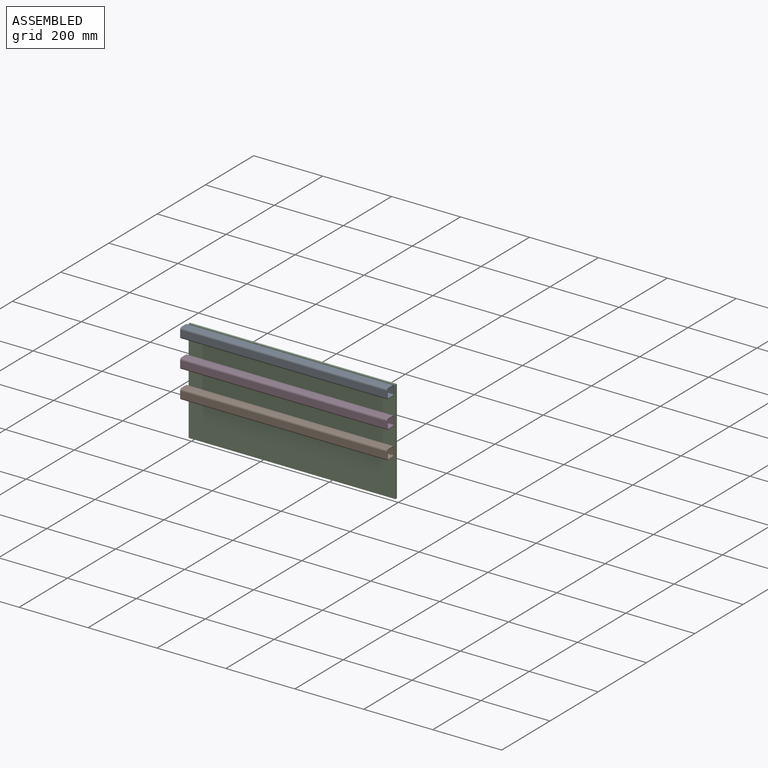
[diagram: assembled view]
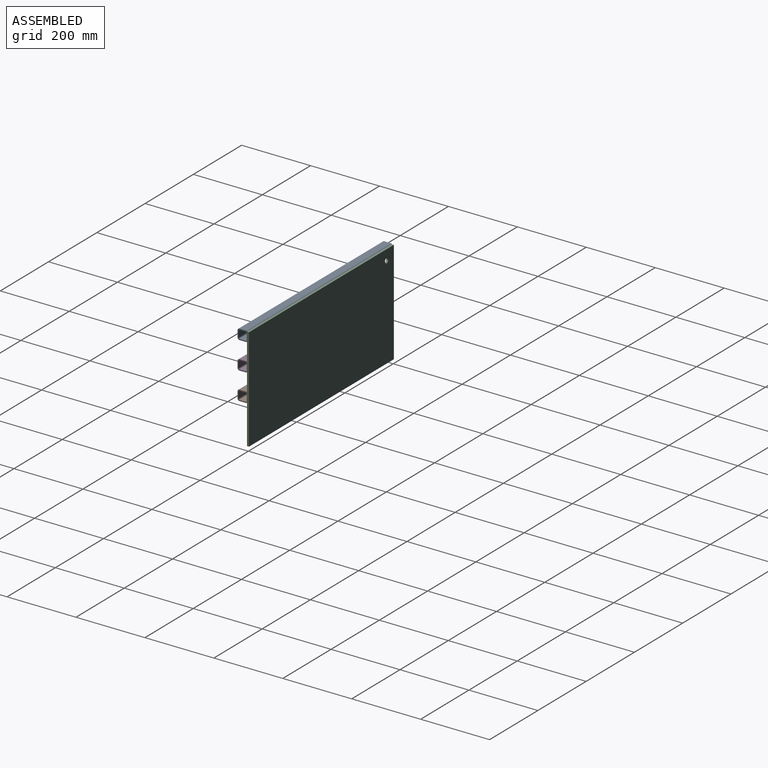
[diagram: assembled view, second angle]
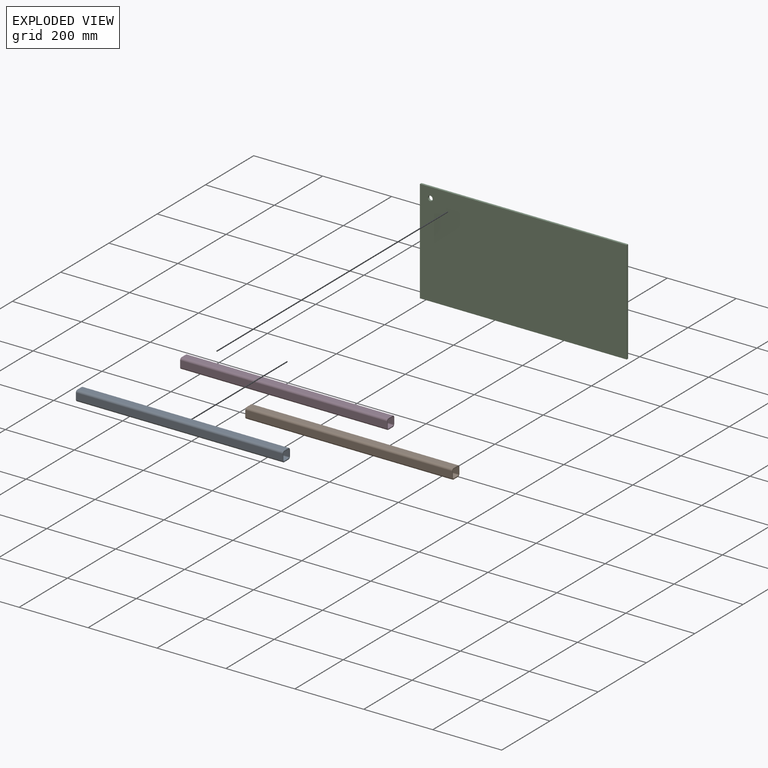
[diagram: exploded view]
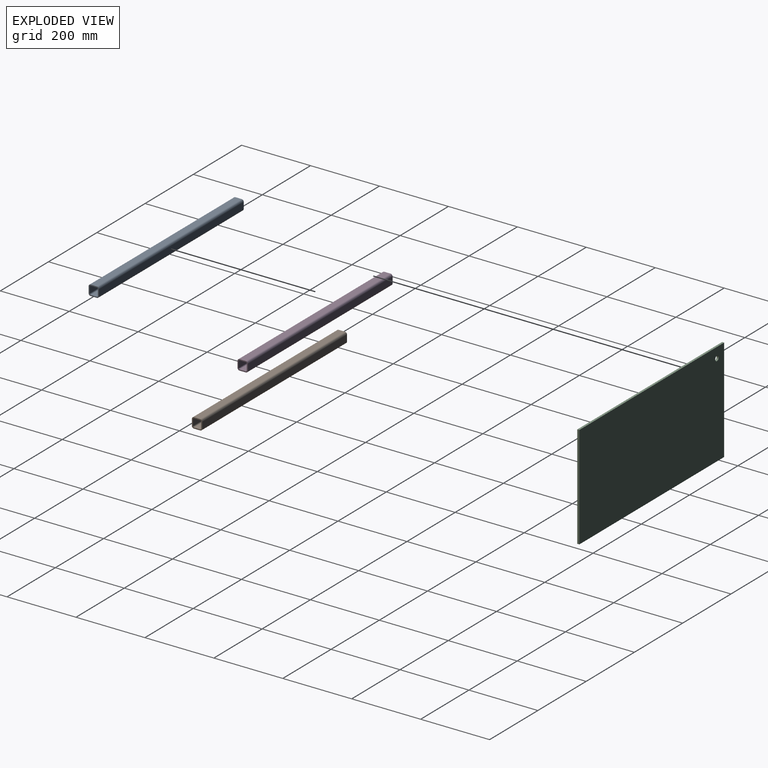
[diagram: exploded view, second angle]
ASSEMBLY  parts=4 mates=2
PART A: 18 faces, bbox 30x30x600 mm
  f0: plane 30x30mm, normal (0,0,-1), area 300.8mm2, adj f1,f2,f3,f4,f5,f6,f7,f8
  f1: plane 600x18mm, normal (0,1,0), area 10800mm2, adj f0,f2,f8,f17
  f2: cylinder r=6mm len=600mm, axis (0,0,1), area 5654.9mm2, adj f0,f1,f3,f17
  f3: plane 600x18mm, normal (1,0,0), area 10800mm2, adj f0,f2,f4,f17
  f4: cylinder r=6mm len=600mm, axis (0,0,1), area 5654.9mm2, adj f0,f3,f5,f17
  f5: plane 600x18mm, normal (0,-1,0), area 10800mm2, adj f0,f4,f6,f17
  f6: cylinder r=6mm len=600mm, axis (0,0,1), area 5654.9mm2, adj f0,f5,f7,f17
  f7: plane 600x18mm, normal (-1,0,0), area 10800mm2, adj f0,f6,f8,f17
  f8: cylinder r=6mm len=600mm, axis (0,0,1), area 5654.9mm2, adj f0,f1,f7,f17
  f9: plane 600x18mm, normal (0,-1,0), area 10800mm2, adj f0,f10,f16,f17
  f10: cylinder r=3mm len=600mm, axis (0,0,1), area 2827.4mm2, adj f0,f9,f11,f17
  f11: plane 600x18mm, normal (1,0,0), area 10800mm2, adj f0,f10,f12,f17
  f12: cylinder r=3mm len=600mm, axis (0,0,1), area 2827.4mm2, adj f0,f11,f13,f17
  f13: plane 600x18mm, normal (0,1,0), area 10800mm2, adj f0,f12,f14,f17
  f14: cylinder r=3mm len=600mm, axis (0,0,1), area 2827.4mm2, adj f0,f13,f15,f17
  f15: plane 600x18mm, normal (-1,0,0), area 10800mm2, adj f0,f14,f16,f17
  f16: cylinder r=3mm len=600mm, axis (0,0,1), area 2827.4mm2, adj f0,f9,f15,f17
  f17: plane 30x30mm, normal (0,0,1), area 300.8mm2, adj f1,f2,f3,f4,f5,f6,f7,f8
PART B: same geometry as A
PART C: 7 faces, bbox 600x300x6 mm
  f0: plane 300x6mm, normal (-1,0,0), area 1800mm2, adj f1,f3,f5,f6
  f1: plane 600x6mm, normal (0,-1,0), area 3600mm2, adj f0,f2,f5,f6
  f2: plane 300x6mm, normal (1,0,0), area 1800mm2, adj f1,f3,f5,f6
  f3: plane 600x6mm, normal (0,1,0), area 3600mm2, adj f0,f2,f5,f6
  f4: cylinder r=7mm len=14mm, axis (0,0,-1), area 263.9mm2, adj f5,f6
  f5: plane 600x300mm, normal (0,0,1), area 179846.1mm2, adj f0,f1,f2,f3,f4
  f6: plane 600x300mm, normal (0,0,-1), area 179846.1mm2, adj f0,f1,f2,f3,f4
PART D: same geometry as A
PLACE A rot(axis=(0.58,0.58,0.58),120deg) t=(-7.32,-21.69,273.02)mm
PLACE B rot(axis=(0.58,0.58,0.58),120deg) t=(-7.32,-21.69,113.02)mm
PLACE C rot(axis=(1,0,0),90deg) t=(-3.8,-0.69,3.02)mm
PLACE D rot(axis=(0.58,0.58,0.58),120deg) t=(-7.32,-21.69,193.02)mm
MATE planar A.f3 <-> C.f5  axis (0,1,0) through (292.68,-6.69,288.02)mm
MATE planar C.f3 <-> A.f1  axis (0,0,1) through (296.2,-3.69,303.02)mm
